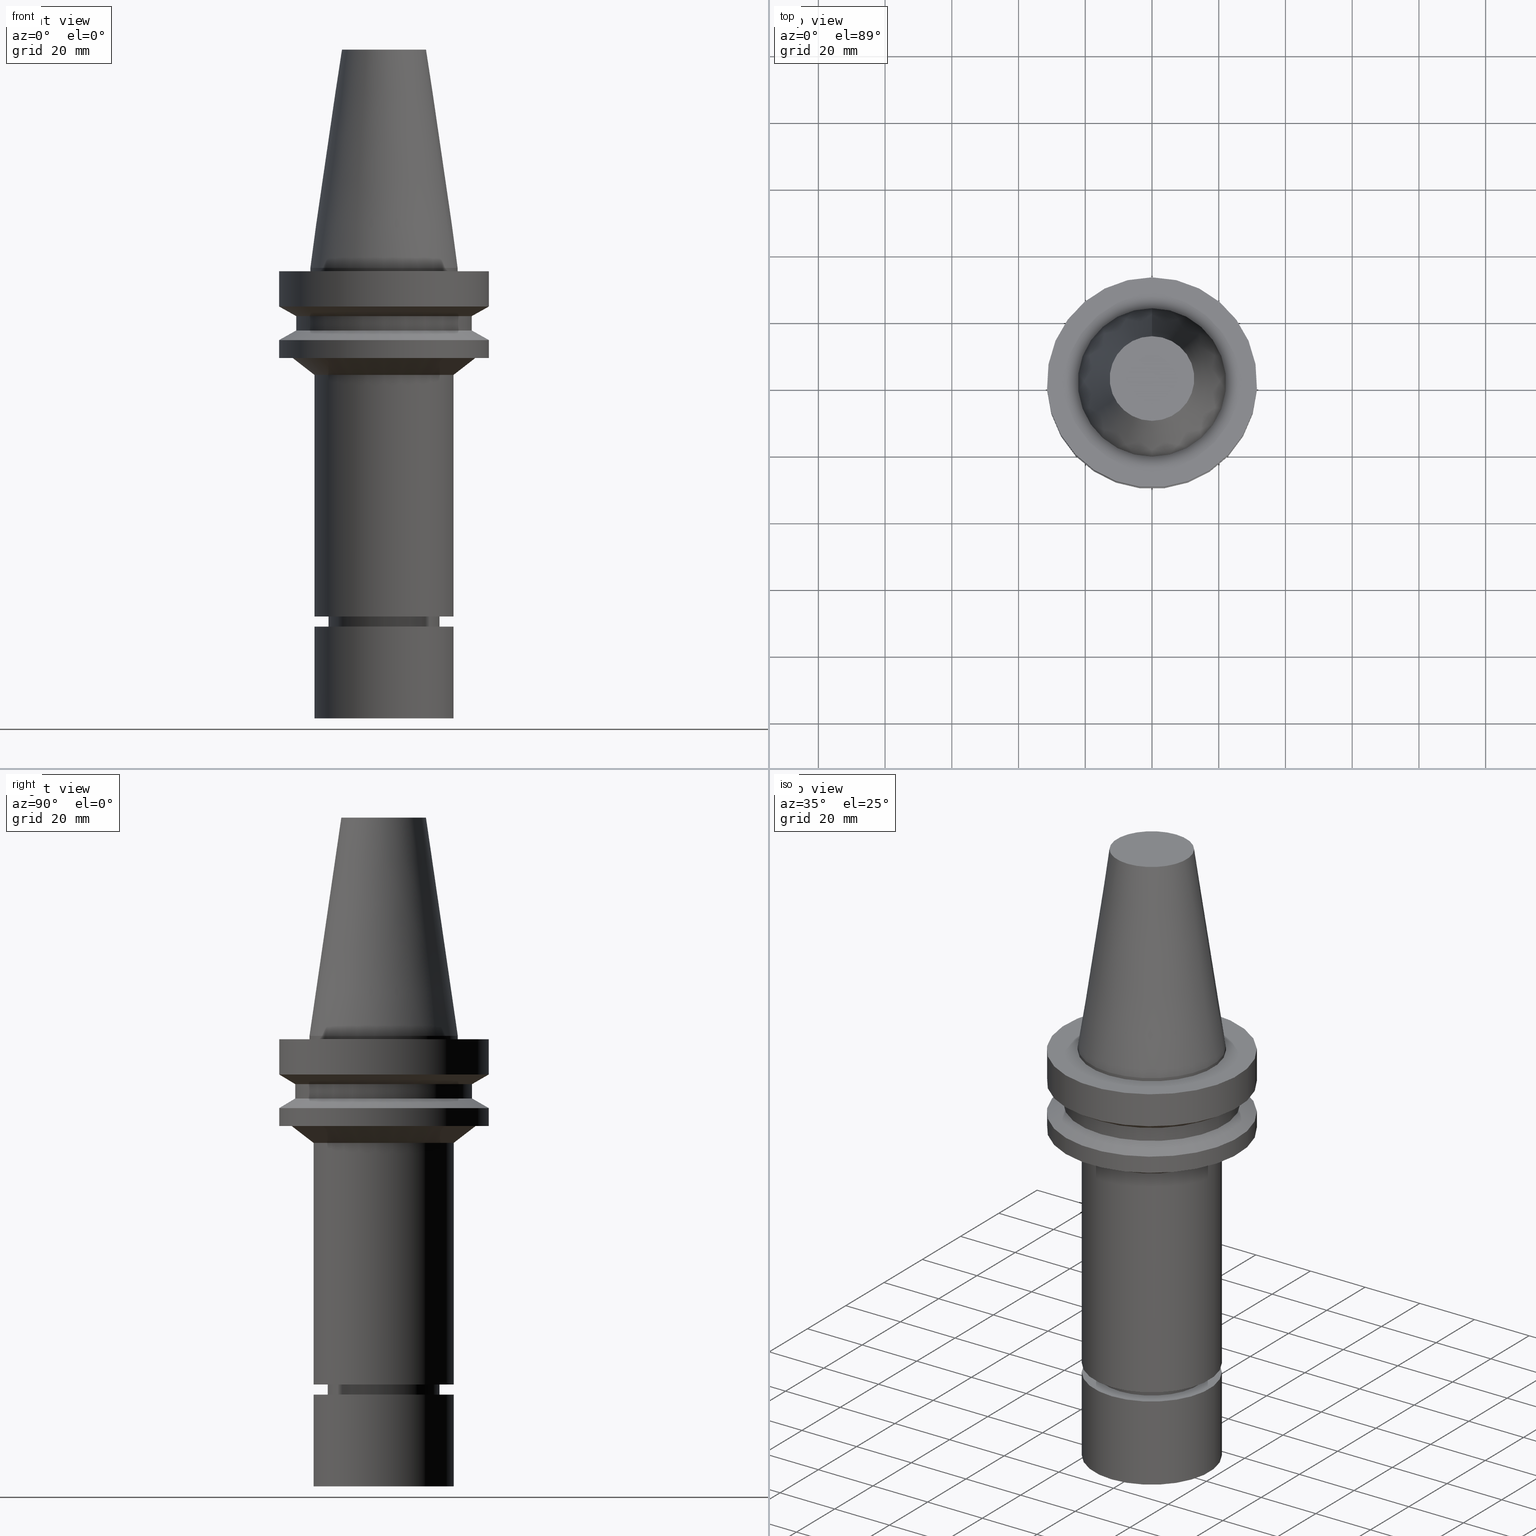
[diagram: canonical four-view strip — front | top / right | iso, engineering-drawing reading convention]
A machine part, canonical four-view strip (front | top / right | iso — engineering-drawing reading convention). The complete STEP part file that produces these views, byte-faithful:
ISO-10303-21;
HEADER;
FILE_DESCRIPTION((''),'1');
FILE_NAME('V:/90_\X2\53D65F9730C730FC30BF\X0\/00_\X2\6DE18DEF30C730FC30BF\X0\/ALL/BBT-BKUS\X2\FF76FF80FF9BFF78FF9E752852A05DE556F3\X0\201801/BBT40-MEGAER/BBT40-MEGAER25-135NL.stp','2018-02-07T02:21:42',(''),(''),'Spatial Interop R21 SP3','Kubotek KeyCreator 2011 V10.0.2 (22737)',' ');
FILE_SCHEMA(('automotive_design'));
ENDSEC;
DATA;
#1=MECHANICAL_DESIGN_GEOMETRIC_PRESENTATION_REPRESENTATION(' ',(#14,#15,#16,#17,#18,#19,#20,#21,#22,#23,#24,#25,#26,#27,#28,#29,#30,#31,#32,#33,#34,#35,#36,#37,#38,#39,#40,#41,#42,#43,#44,#45,#46,#47,#48,#49,#50,#51,#52,#53,#54,#55),#10);
#2=PRODUCT_DEFINITION_CONTEXT('',#56,'design');
#3=APPLICATION_PROTOCOL_DEFINITION('INTERNATIONAL STANDARD','automotive_design',1994,#56);
#4=PRODUCT_CATEGORY_RELATIONSHIP('NONE','NONE',#57,#58);
#5=SHAPE_DEFINITION_REPRESENTATION(#59,#60);
#6=PRODUCT_DEFINITION_CONTEXT('',#61,'design');
#7=APPLICATION_PROTOCOL_DEFINITION('INTERNATIONAL STANDARD','automotive_design',1994,#61);
#8=PRODUCT_CATEGORY_RELATIONSHIP('NONE','NONE',#62,#63);
#9=SHAPE_DEFINITION_REPRESENTATION(#64,#65);
#10= (GEOMETRIC_REPRESENTATION_CONTEXT(3)GLOBAL_UNCERTAINTY_ASSIGNED_CONTEXT((#68))GLOBAL_UNIT_ASSIGNED_CONTEXT((#70,#71,#72))REPRESENTATION_CONTEXT('NONE','WORKSPACE'));
#14=STYLED_ITEM('',(#74,#75),#76);
#15=STYLED_ITEM('',(#77,#78),#79);
#16=STYLED_ITEM('',(#80),#81);
#17=STYLED_ITEM('',(#82,#83),#84);
#18=STYLED_ITEM('',(#85),#86);
#19=STYLED_ITEM('',(#87,#88),#89);
#20=STYLED_ITEM('',(#90),#91);
#21=STYLED_ITEM('',(#92,#93),#94);
#22=STYLED_ITEM('',(#95,#96),#97);
#23=STYLED_ITEM('',(#98),#99);
#24=STYLED_ITEM('',(#100,#101),#102);
#25=STYLED_ITEM('',(#103,#104),#105);
#26=STYLED_ITEM('',(#106),#107);
#27=STYLED_ITEM('',(#108),#109);
#28=STYLED_ITEM('',(#110,#111),#112);
#29=STYLED_ITEM('',(#113),#114);
#30=STYLED_ITEM('',(#115),#116);
#31=STYLED_ITEM('',(#117),#118);
#32=STYLED_ITEM('',(#119),#120);
#33=STYLED_ITEM('',(#121,#122),#123);
#34=STYLED_ITEM('',(#124,#125),#126);
#35=STYLED_ITEM('',(#127),#128);
#36=STYLED_ITEM('',(#129,#130),#131);
#37=STYLED_ITEM('',(#132,#133),#134);
#38=STYLED_ITEM('',(#135,#136),#137);
#39=STYLED_ITEM('',(#138),#139);
#40=STYLED_ITEM('',(#140,#141),#142);
#41=STYLED_ITEM('',(#143),#144);
#42=STYLED_ITEM('',(#145,#146),#147);
#43=STYLED_ITEM('',(#148),#149);
#44=STYLED_ITEM('',(#150,#151),#152);
#45=STYLED_ITEM('',(#153,#154),#155);
#46=STYLED_ITEM('',(#156),#157);
#47=STYLED_ITEM('',(#158,#159),#160);
#48=STYLED_ITEM('',(#161,#162),#163);
#49=STYLED_ITEM('',(#164,#165),#166);
#50=STYLED_ITEM('',(#167,#168),#169);
#51=STYLED_ITEM('',(#170,#171),#172);
#52=STYLED_ITEM('',(#173),#174);
#53=STYLED_ITEM('',(#175),#176);
#54=STYLED_ITEM('',(#177),#178);
#55=STYLED_ITEM('',(#179),#180);
#56=APPLICATION_CONTEXT(' ');
#57=PRODUCT_CATEGORY('part','NONE');
#58=PRODUCT_RELATED_PRODUCT_CATEGORY('detail',' ',(#181));
#59=PRODUCT_DEFINITION_SHAPE('NONE','NONE',#182);
#60=ADVANCED_BREP_SHAPE_REPRESENTATION('Unnamed[1]',(#160,#183),#10);
#61=APPLICATION_CONTEXT(' ');
#62=PRODUCT_CATEGORY('part','NONE');
#63=PRODUCT_RELATED_PRODUCT_CATEGORY('detail',' ',(#184));
#64=PRODUCT_DEFINITION_SHAPE('NONE','NONE',#185);
#65=ADVANCED_BREP_SHAPE_REPRESENTATION('Unnamed[1]',(#89,#186),#10);
#68=UNCERTAINTY_MEASURE_WITH_UNIT(LENGTH_MEASURE(1.0E-006),#70,'','');
#70= (CONVERSION_BASED_UNIT('MILLIMETRE',#189)LENGTH_UNIT()NAMED_UNIT(#192));
#71= (NAMED_UNIT(#194)PLANE_ANGLE_UNIT()SI_UNIT($,.RADIAN.));
#72= (NAMED_UNIT(#194)SOLID_ANGLE_UNIT()SI_UNIT($,.STERADIAN.));
#74=PRESENTATION_STYLE_ASSIGNMENT((#200));
#75=PRESENTATION_STYLE_ASSIGNMENT((#201));
#76=ADVANCED_FACE('Unnamed[1]',(#202,#203),#204,.T.);
#77=PRESENTATION_STYLE_ASSIGNMENT((#205));
#78=PRESENTATION_STYLE_ASSIGNMENT((#206));
#79=ADVANCED_FACE('Unnamed[1]',(#207,#208),#209,.T.);
#80=PRESENTATION_STYLE_ASSIGNMENT((#210));
#81=EDGE_CURVE('Unnamed[1]',#211,#211,#212,.T.);
#82=PRESENTATION_STYLE_ASSIGNMENT((#213));
#83=PRESENTATION_STYLE_ASSIGNMENT((#214));
#84=ADVANCED_FACE('Unnamed[1]',(#215,#216),#217,.T.);
#85=PRESENTATION_STYLE_ASSIGNMENT((#218));
#86=EDGE_CURVE('Unnamed[1]',#219,#219,#220,.T.);
#87=PRESENTATION_STYLE_ASSIGNMENT((#221));
#88=PRESENTATION_STYLE_ASSIGNMENT((#222));
#89=MANIFOLD_SOLID_BREP('Unnamed[1]',#223);
#90=PRESENTATION_STYLE_ASSIGNMENT((#224));
#91=EDGE_CURVE('Unnamed[1]',#225,#225,#226,.T.);
#92=PRESENTATION_STYLE_ASSIGNMENT((#227));
#93=PRESENTATION_STYLE_ASSIGNMENT((#228));
#94=ADVANCED_FACE('Unnamed[1]',(#229,#230),#231,.T.);
#95=PRESENTATION_STYLE_ASSIGNMENT((#232));
#96=PRESENTATION_STYLE_ASSIGNMENT((#233));
#97=ADVANCED_FACE('Unnamed[1]',(#234,#235),#236,.T.);
#98=PRESENTATION_STYLE_ASSIGNMENT((#237));
#99=EDGE_CURVE('Unnamed[1]',#238,#238,#239,.T.);
#100=PRESENTATION_STYLE_ASSIGNMENT((#240));
#101=PRESENTATION_STYLE_ASSIGNMENT((#241));
#102=ADVANCED_FACE('Unnamed[1]',(#242,#243),#244,.T.);
#103=PRESENTATION_STYLE_ASSIGNMENT((#245));
#104=PRESENTATION_STYLE_ASSIGNMENT((#246));
#105=ADVANCED_FACE('Unnamed[1]',(#247,#248),#249,.T.);
#106=PRESENTATION_STYLE_ASSIGNMENT((#250));
#107=EDGE_CURVE('Unnamed[1]',#251,#251,#252,.T.);
#108=PRESENTATION_STYLE_ASSIGNMENT((#253));
#109=EDGE_CURVE('Unnamed[1]',#254,#254,#255,.T.);
#110=PRESENTATION_STYLE_ASSIGNMENT((#256));
#111=PRESENTATION_STYLE_ASSIGNMENT((#257));
#112=ADVANCED_FACE('Unnamed[1]',(#258,#259),#260,.T.);
#113=PRESENTATION_STYLE_ASSIGNMENT((#261));
#114=EDGE_CURVE('Unnamed[1]',#262,#262,#263,.T.);
#115=PRESENTATION_STYLE_ASSIGNMENT((#264));
#116=EDGE_CURVE('Unnamed[1]',#265,#265,#266,.T.);
#117=PRESENTATION_STYLE_ASSIGNMENT((#267));
#118=EDGE_CURVE('Unnamed[1]',#268,#268,#269,.T.);
#119=PRESENTATION_STYLE_ASSIGNMENT((#270));
#120=EDGE_CURVE('Unnamed[1]',#271,#271,#272,.T.);
#121=PRESENTATION_STYLE_ASSIGNMENT((#273));
#122=PRESENTATION_STYLE_ASSIGNMENT((#274));
#123=ADVANCED_FACE('Unnamed[1]',(#275,#276),#277,.T.);
#124=PRESENTATION_STYLE_ASSIGNMENT((#278));
#125=PRESENTATION_STYLE_ASSIGNMENT((#279));
#126=ADVANCED_FACE('Unnamed[1]',(#280,#281),#282,.T.);
#127=PRESENTATION_STYLE_ASSIGNMENT((#283));
#128=EDGE_CURVE('Unnamed[1]',#284,#284,#285,.T.);
#129=PRESENTATION_STYLE_ASSIGNMENT((#286));
#130=PRESENTATION_STYLE_ASSIGNMENT((#287));
#131=ADVANCED_FACE('Unnamed[1]',(#288,#289),#290,.T.);
#132=PRESENTATION_STYLE_ASSIGNMENT((#291));
#133=PRESENTATION_STYLE_ASSIGNMENT((#292));
#134=ADVANCED_FACE('Unnamed[1]',(#293),#294,.T.);
#135=PRESENTATION_STYLE_ASSIGNMENT((#295));
#136=PRESENTATION_STYLE_ASSIGNMENT((#296));
#137=ADVANCED_FACE('Unnamed[1]',(#297,#298),#299,.T.);
#138=PRESENTATION_STYLE_ASSIGNMENT((#300));
#139=EDGE_CURVE('Unnamed[1]',#301,#301,#302,.T.);
#140=PRESENTATION_STYLE_ASSIGNMENT((#303));
#141=PRESENTATION_STYLE_ASSIGNMENT((#304));
#142=ADVANCED_FACE('Unnamed[1]',(#305),#306,.T.);
#143=PRESENTATION_STYLE_ASSIGNMENT((#307));
#144=EDGE_CURVE('Unnamed[1]',#308,#308,#309,.T.);
#145=PRESENTATION_STYLE_ASSIGNMENT((#310));
#146=PRESENTATION_STYLE_ASSIGNMENT((#311));
#147=ADVANCED_FACE('Unnamed[1]',(#312),#313,.T.);
#148=PRESENTATION_STYLE_ASSIGNMENT((#314));
#149=EDGE_CURVE('Unnamed[1]',#315,#315,#316,.T.);
#150=PRESENTATION_STYLE_ASSIGNMENT((#317));
#151=PRESENTATION_STYLE_ASSIGNMENT((#318));
#152=ADVANCED_FACE('Unnamed[1]',(#319,#320),#321,.T.);
#153=PRESENTATION_STYLE_ASSIGNMENT((#322));
#154=PRESENTATION_STYLE_ASSIGNMENT((#323));
#155=ADVANCED_FACE('Unnamed[1]',(#324,#325),#326,.T.);
#156=PRESENTATION_STYLE_ASSIGNMENT((#327));
#157=EDGE_CURVE('Unnamed[1]',#328,#328,#329,.T.);
#158=PRESENTATION_STYLE_ASSIGNMENT((#330));
#159=PRESENTATION_STYLE_ASSIGNMENT((#331));
#160=MANIFOLD_SOLID_BREP('Unnamed[1]',#332);
#161=PRESENTATION_STYLE_ASSIGNMENT((#333));
#162=PRESENTATION_STYLE_ASSIGNMENT((#334));
#163=ADVANCED_FACE('Unnamed[1]',(#335,#336),#337,.T.);
#164=PRESENTATION_STYLE_ASSIGNMENT((#338));
#165=PRESENTATION_STYLE_ASSIGNMENT((#339));
#166=ADVANCED_FACE('Unnamed[1]',(#340,#341),#342,.T.);
#167=PRESENTATION_STYLE_ASSIGNMENT((#343));
#168=PRESENTATION_STYLE_ASSIGNMENT((#344));
#169=ADVANCED_FACE('Unnamed[1]',(#345,#346),#347,.T.);
#170=PRESENTATION_STYLE_ASSIGNMENT((#348));
#171=PRESENTATION_STYLE_ASSIGNMENT((#349));
#172=ADVANCED_FACE('Unnamed[1]',(#350),#351,.T.);
#173=PRESENTATION_STYLE_ASSIGNMENT((#352));
#174=EDGE_CURVE('Unnamed[1]',#353,#353,#354,.T.);
#175=PRESENTATION_STYLE_ASSIGNMENT((#355));
#176=EDGE_CURVE('Unnamed[1]',#356,#356,#357,.T.);
#177=PRESENTATION_STYLE_ASSIGNMENT((#358));
#178=EDGE_CURVE('Unnamed[1]',#359,#359,#360,.T.);
#179=PRESENTATION_STYLE_ASSIGNMENT((#361));
#180=EDGE_CURVE('Unnamed[1]',#362,#362,#363,.T.);
#181=PRODUCT('Unnamed[1]','Unnamed[1]','PART-Unnamed[1]-DESC',(#364));
#182=PRODUCT_DEFINITION('NONE','NONE',#365,#2);
#183=AXIS2_PLACEMENT_3D('',#366,#367,#368);
#184=PRODUCT('Unnamed[1]','Unnamed[1]','PART-Unnamed[1]-DESC',(#369));
#185=PRODUCT_DEFINITION('NONE','NONE',#370,#6);
#186=AXIS2_PLACEMENT_3D('',#371,#372,#373);
#189=LENGTH_MEASURE_WITH_UNIT(LENGTH_MEASURE(1.0),#374);
#192=DIMENSIONAL_EXPONENTS(1.0,0.0,0.0,0.0,0.0,0.0,0.0);
#194=DIMENSIONAL_EXPONENTS(0.0,0.0,0.0,0.0,0.0,0.0,0.0);
#200=SURFACE_STYLE_USAGE(.BOTH.,#375);
#201=CURVE_STYLE('',#376,POSITIVE_LENGTH_MEASURE(1000.0),#377);
#202=FACE_BOUND('',#378,.T.);
#203=FACE_OUTER_BOUND('',#379,.T.);
#204=PLANE('',#380);
#205=SURFACE_STYLE_USAGE(.BOTH.,#381);
#206=CURVE_STYLE('',#382,POSITIVE_LENGTH_MEASURE(1000.0),#383);
#207=FACE_BOUND('',#384,.T.);
#208=FACE_BOUND('',#385,.T.);
#209=CONICAL_SURFACE('',#386,28.9999999999999,1.04719755119657);
#210=CURVE_STYLE('',#387,POSITIVE_LENGTH_MEASURE(1000.0),#388);
#211=VERTEX_POINT('',#389);
#212=CIRCLE('',#390,26.4999999999994);
#213=SURFACE_STYLE_USAGE(.BOTH.,#391);
#214=CURVE_STYLE('',#392,POSITIVE_LENGTH_MEASURE(1000.0),#393);
#215=FACE_BOUND('',#394,.T.);
#216=FACE_BOUND('',#395,.T.);
#217=CONICAL_SURFACE('',#396,17.45625,0.144812498238936);
#218=CURVE_STYLE('',#397,POSITIVE_LENGTH_MEASURE(1000.0),#398);
#219=VERTEX_POINT('',#399);
#220=CIRCLE('',#400,16.7499999999907);
#221=SURFACE_STYLE_USAGE(.BOTH.,#401);
#222=CURVE_STYLE('',#402,POSITIVE_LENGTH_MEASURE(1000.0),#403);
#223=CLOSED_SHELL('',(#142,#147,#137));
#224=CURVE_STYLE('',#404,POSITIVE_LENGTH_MEASURE(1000.0),#405);
#225=VERTEX_POINT('',#406);
#226=CIRCLE('',#407,12.6875000000001);
#227=SURFACE_STYLE_USAGE(.BOTH.,#408);
#228=CURVE_STYLE('',#409,POSITIVE_LENGTH_MEASURE(1000.0),#410);
#229=FACE_BOUND('',#411,.T.);
#230=FACE_BOUND('',#412,.T.);
#231=CYLINDRICAL_SURFACE('',#413,31.5);
#232=SURFACE_STYLE_USAGE(.BOTH.,#414);
#233=CURVE_STYLE('',#415,POSITIVE_LENGTH_MEASURE(1000.0),#416);
#234=FACE_BOUND('',#417,.T.);
#235=FACE_BOUND('',#418,.T.);
#236=CYLINDRICAL_SURFACE('',#419,16.0);
#237=CURVE_STYLE('',#420,POSITIVE_LENGTH_MEASURE(1000.0),#421);
#238=VERTEX_POINT('',#422);
#239=CIRCLE('',#423,31.5000000000003);
#240=SURFACE_STYLE_USAGE(.BOTH.,#424);
#241=CURVE_STYLE('',#425,POSITIVE_LENGTH_MEASURE(1000.0),#426);
#242=FACE_BOUND('',#427,.T.);
#243=FACE_BOUND('',#428,.T.);
#244=CYLINDRICAL_SURFACE('',#429,26.4999999999997);
#245=SURFACE_STYLE_USAGE(.BOTH.,#430);
#246=CURVE_STYLE('',#431,POSITIVE_LENGTH_MEASURE(1000.0),#432);
#247=FACE_BOUND('',#433,.T.);
#248=FACE_BOUND('',#434,.T.);
#249=CONICAL_SURFACE('',#435,15.4500000000003,0.52359877559807);
#250=CURVE_STYLE('',#436,POSITIVE_LENGTH_MEASURE(1000.0),#437);
#251=VERTEX_POINT('',#438);
#252=CIRCLE('',#439,21.0000000000001);
#253=CURVE_STYLE('',#440,POSITIVE_LENGTH_MEASURE(1000.0),#441);
#254=VERTEX_POINT('',#442);
#255=CIRCLE('',#443,16.0);
#256=SURFACE_STYLE_USAGE(.BOTH.,#444);
#257=CURVE_STYLE('',#445,POSITIVE_LENGTH_MEASURE(1000.0),#446);
#258=FACE_BOUND('',#447,.T.);
#259=FACE_BOUND('',#448,.T.);
#260=CYLINDRICAL_SURFACE('',#449,22.225);
#261=CURVE_STYLE('',#450,POSITIVE_LENGTH_MEASURE(1000.0),#451);
#262=VERTEX_POINT('',#452);
#263=CIRCLE('',#453,26.5);
#264=CURVE_STYLE('',#454,POSITIVE_LENGTH_MEASURE(1000.0),#455);
#265=VERTEX_POINT('',#456);
#266=CIRCLE('',#457,21.0000000000004);
#267=CURVE_STYLE('',#458,POSITIVE_LENGTH_MEASURE(1000.0),#459);
#268=VERTEX_POINT('',#460);
#269=CIRCLE('',#461,21.0);
#270=CURVE_STYLE('',#462,POSITIVE_LENGTH_MEASURE(1000.0),#463);
#271=VERTEX_POINT('',#464);
#272=CIRCLE('',#465,21.0);
#273=SURFACE_STYLE_USAGE(.BOTH.,#466);
#274=CURVE_STYLE('',#467,POSITIVE_LENGTH_MEASURE(1000.0),#468);
#275=FACE_BOUND('',#469,.T.);
#276=FACE_OUTER_BOUND('',#470,.T.);
#277=PLANE('',#471);
#278=SURFACE_STYLE_USAGE(.BOTH.,#472);
#279=CURVE_STYLE('',#473,POSITIVE_LENGTH_MEASURE(1000.0),#474);
#280=FACE_BOUND('',#475,.T.);
#281=FACE_BOUND('',#476,.T.);
#282=CONICAL_SURFACE('',#477,29.0000000000003,1.04719755119651);
#283=CURVE_STYLE('',#478,POSITIVE_LENGTH_MEASURE(1000.0),#479);
#284=VERTEX_POINT('',#480);
#285=CIRCLE('',#481,22.225);
#286=SURFACE_STYLE_USAGE(.BOTH.,#482);
#287=CURVE_STYLE('',#483,POSITIVE_LENGTH_MEASURE(1000.0),#484);
#288=FACE_BOUND('',#485,.T.);
#289=FACE_BOUND('',#486,.T.);
#290=CYLINDRICAL_SURFACE('',#487,16.7499999999962);
#291=SURFACE_STYLE_USAGE(.BOTH.,#488);
#292=CURVE_STYLE('',#489,POSITIVE_LENGTH_MEASURE(1000.0),#490);
#293=FACE_OUTER_BOUND('',#491,.T.);
#294=PLANE('',#492);
#295=SURFACE_STYLE_USAGE(.BOTH.,#493);
#296=CURVE_STYLE('',#494,POSITIVE_LENGTH_MEASURE(1000.0),#495);
#297=FACE_BOUND('',#496,.T.);
#298=FACE_BOUND('',#497,.T.);
#299=CYLINDRICAL_SURFACE('',#498,21.0);
#300=CURVE_STYLE('',#499,POSITIVE_LENGTH_MEASURE(1000.0),#500);
#301=VERTEX_POINT('',#501);
#302=CIRCLE('',#502,31.5000000000006);
#303=SURFACE_STYLE_USAGE(.BOTH.,#503);
#304=CURVE_STYLE('',#504,POSITIVE_LENGTH_MEASURE(1000.0),#505);
#305=FACE_OUTER_BOUND('',#506,.T.);
#306=PLANE('',#507);
#307=CURVE_STYLE('',#508,POSITIVE_LENGTH_MEASURE(1000.0),#509);
#308=VERTEX_POINT('',#510);
#309=CIRCLE('',#511,31.5000000000003);
#310=SURFACE_STYLE_USAGE(.BOTH.,#512);
#311=CURVE_STYLE('',#513,POSITIVE_LENGTH_MEASURE(1000.0),#514);
#312=FACE_OUTER_BOUND('',#515,.T.);
#313=PLANE('',#516);
#314=CURVE_STYLE('',#517,POSITIVE_LENGTH_MEASURE(1000.0),#518);
#315=VERTEX_POINT('',#519);
#316=CIRCLE('',#520,16.0);
#317=SURFACE_STYLE_USAGE(.BOTH.,#521);
#318=CURVE_STYLE('',#522,POSITIVE_LENGTH_MEASURE(1000.0),#523);
#319=FACE_BOUND('',#524,.T.);
#320=FACE_BOUND('',#525,.T.);
#321=CYLINDRICAL_SURFACE('',#526,31.5000000000005);
#322=SURFACE_STYLE_USAGE(.BOTH.,#527);
#323=CURVE_STYLE('',#528,POSITIVE_LENGTH_MEASURE(1000.0),#529);
#324=FACE_OUTER_BOUND('',#530,.T.);
#325=FACE_BOUND('',#531,.T.);
#326=PLANE('',#532);
#327=CURVE_STYLE('',#533,POSITIVE_LENGTH_MEASURE(1000.0),#534);
#328=VERTEX_POINT('',#535);
#329=CIRCLE('',#536,14.9000000000006);
#330=SURFACE_STYLE_USAGE(.BOTH.,#537);
#331=CURVE_STYLE('',#538,POSITIVE_LENGTH_MEASURE(1000.0),#539);
#332=CLOSED_SHELL('',(#134,#84,#112,#155,#94,#79,#102,#126,#152,#76,#163,#169,#123,#131,#166,#97,#105,#172));
#333=SURFACE_STYLE_USAGE(.BOTH.,#540);
#334=CURVE_STYLE('',#541,POSITIVE_LENGTH_MEASURE(1000.0),#542);
#335=FACE_BOUND('',#543,.T.);
#336=FACE_BOUND('',#544,.T.);
#337=CONICAL_SURFACE('',#545,24.285926013083,0.914225393497888);
#338=SURFACE_STYLE_USAGE(.BOTH.,#546);
#339=CURVE_STYLE('',#547,POSITIVE_LENGTH_MEASURE(1000.0),#548);
#340=FACE_BOUND('',#549,.T.);
#341=FACE_BOUND('',#550,.T.);
#342=CONICAL_SURFACE('',#551,16.3750000000008,1.04719755120059);
#343=SURFACE_STYLE_USAGE(.BOTH.,#552);
#344=CURVE_STYLE('',#553,POSITIVE_LENGTH_MEASURE(1000.0),#554);
#345=FACE_BOUND('',#555,.T.);
#346=FACE_BOUND('',#556,.T.);
#347=CYLINDRICAL_SURFACE('',#557,21.0000000000003);
#348=SURFACE_STYLE_USAGE(.BOTH.,#558);
#349=CURVE_STYLE('',#559,POSITIVE_LENGTH_MEASURE(1000.0),#560);
#350=FACE_OUTER_BOUND('',#561,.T.);
#351=PLANE('',#562);
#352=CURVE_STYLE('',#563,POSITIVE_LENGTH_MEASURE(1000.0),#564);
#353=VERTEX_POINT('',#565);
#354=CIRCLE('',#566,31.4999999999996);
#355=CURVE_STYLE('',#567,POSITIVE_LENGTH_MEASURE(1000.0),#568);
#356=VERTEX_POINT('',#569);
#357=CIRCLE('',#570,27.5718520261655);
#358=CURVE_STYLE('',#571,POSITIVE_LENGTH_MEASURE(1000.0),#572);
#359=VERTEX_POINT('',#573);
#360=CIRCLE('',#574,16.7500000000016);
#361=CURVE_STYLE('',#575,POSITIVE_LENGTH_MEASURE(1000.0),#576);
#362=VERTEX_POINT('',#577);
#363=CIRCLE('',#578,22.225);
#364=PRODUCT_CONTEXT('',#56,'mechanical');
#365=PRODUCT_DEFINITION_FORMATION_WITH_SPECIFIED_SOURCE(' ','NONE',#181,.NOT_KNOWN.);
#366=CARTESIAN_POINT('',(0.0,0.0,0.0));
#367=DIRECTION('',(0.0,0.0,1.0));
#368=DIRECTION('',(1.0,0.0,0.0));
#369=PRODUCT_CONTEXT('',#61,'mechanical');
#370=PRODUCT_DEFINITION_FORMATION_WITH_SPECIFIED_SOURCE(' ','NONE',#184,.NOT_KNOWN.);
#371=CARTESIAN_POINT('',(0.0,0.0,0.0));
#372=DIRECTION('',(0.0,0.0,1.0));
#373=DIRECTION('',(1.0,0.0,0.0));
#374= (NAMED_UNIT(#192)LENGTH_UNIT()SI_UNIT(.MILLI.,.METRE.));
#375=SURFACE_SIDE_STYLE('',(#580));
#376=DRAUGHTING_PRE_DEFINED_CURVE_FONT('continuous');
#377=COLOUR_RGB('',0.0,1.0,0.0);
#378=EDGE_LOOP('',(#581));
#379=EDGE_LOOP('',(#582));
#380=AXIS2_PLACEMENT_3D('',#583,#584,#585);
#381=SURFACE_SIDE_STYLE('',(#586));
#382=DRAUGHTING_PRE_DEFINED_CURVE_FONT('continuous');
#383=COLOUR_RGB('',0.0,1.0,0.0);
#384=EDGE_LOOP('',(#587));
#385=EDGE_LOOP('',(#588));
#386=AXIS2_PLACEMENT_3D('',#589,#590,#591);
#387=DRAUGHTING_PRE_DEFINED_CURVE_FONT('continuous');
#388=COLOUR_RGB('',0.0,1.0,0.0);
#389=CARTESIAN_POINT('',(8.8494551369045E-016,26.4999999999995,-14.4522569986152));
#390=AXIS2_PLACEMENT_3D('',#592,#593,#594);
#391=SURFACE_SIDE_STYLE('',(#595));
#392=DRAUGHTING_PRE_DEFINED_CURVE_FONT('continuous');
#393=COLOUR_RGB('',0.0,1.0,0.0);
#394=EDGE_LOOP('',(#596));
#395=EDGE_LOOP('',(#597));
#396=AXIS2_PLACEMENT_3D('',#598,#599,#600);
#397=DRAUGHTING_PRE_DEFINED_CURVE_FONT('continuous');
#398=COLOUR_RGB('',0.0,1.0,0.0);
#399=CARTESIAN_POINT('',(6.39877952554487E-015,16.7499999999907,-104.499999999999));
#400=AXIS2_PLACEMENT_3D('',#601,#602,#603);
#401=SURFACE_SIDE_STYLE('',(#604));
#402=DRAUGHTING_PRE_DEFINED_CURVE_FONT('continuous');
#403=COLOUR_RGB('',0.0,1.0,0.0);
#404=DRAUGHTING_PRE_DEFINED_CURVE_FONT('continuous');
#405=COLOUR_RGB('',0.0,1.0,0.0);
#406=CARTESIAN_POINT('',(-4.00459503321185E-015,12.6875000000002,65.4000000000001));
#407=AXIS2_PLACEMENT_3D('',#605,#606,#607);
#408=SURFACE_SIDE_STYLE('',(#608));
#409=DRAUGHTING_PRE_DEFINED_CURVE_FONT('continuous');
#410=COLOUR_RGB('',0.0,1.0,0.0);
#411=EDGE_LOOP('',(#609));
#412=EDGE_LOOP('',(#610));
#413=AXIS2_PLACEMENT_3D('',#611,#612,#613);
#414=SURFACE_SIDE_STYLE('',(#614));
#415=DRAUGHTING_PRE_DEFINED_CURVE_FONT('continuous');
#416=COLOUR_RGB('',0.0,1.0,0.0);
#417=EDGE_LOOP('',(#615));
#418=EDGE_LOOP('',(#616));
#419=AXIS2_PLACEMENT_3D('',#617,#618,#619);
#420=DRAUGHTING_PRE_DEFINED_CURVE_FONT('continuous');
#421=COLOUR_RGB('',0.0,1.0,0.0);
#422=CARTESIAN_POINT('',(7.08182973902924E-016,31.5000000000004,-11.5655056526664));
#423=AXIS2_PLACEMENT_3D('',#620,#621,#622);
#424=SURFACE_SIDE_STYLE('',(#623));
#425=DRAUGHTING_PRE_DEFINED_CURVE_FONT('continuous');
#426=COLOUR_RGB('',0.0,1.0,0.0);
#427=EDGE_LOOP('',(#624));
#428=EDGE_LOOP('',(#625));
#429=AXIS2_PLACEMENT_3D('',#626,#627,#628);
#430=SURFACE_SIDE_STYLE('',(#629));
#431=DRAUGHTING_PRE_DEFINED_CURVE_FONT('continuous');
#432=COLOUR_RGB('',0.0,1.0,0.0);
#433=EDGE_LOOP('',(#630));
#434=EDGE_LOOP('',(#631));
#435=AXIS2_PLACEMENT_3D('',#632,#633,#634);
#436=DRAUGHTING_PRE_DEFINED_CURVE_FONT('continuous');
#437=COLOUR_RGB('',0.0,1.0,0.0);
#438=CARTESIAN_POINT('',(6.39877952554491E-015,21.0000000000002,-104.5));
#439=AXIS2_PLACEMENT_3D('',#635,#636,#637);
#440=DRAUGHTING_PRE_DEFINED_CURVE_FONT('continuous');
#441=COLOUR_RGB('',0.0,1.0,0.0);
#442=CARTESIAN_POINT('',(7.52513275041975E-015,16.0,-122.894744111674));
#443=AXIS2_PLACEMENT_3D('',#638,#639,#640);
#444=SURFACE_SIDE_STYLE('',(#641));
#445=DRAUGHTING_PRE_DEFINED_CURVE_FONT('continuous');
#446=COLOUR_RGB('',0.0,1.0,0.0);
#447=EDGE_LOOP('',(#642));
#448=EDGE_LOOP('',(#643));
#449=AXIS2_PLACEMENT_3D('',#644,#645,#646);
#450=DRAUGHTING_PRE_DEFINED_CURVE_FONT('continuous');
#451=COLOUR_RGB('',0.0,1.0,0.0);
#452=CARTESIAN_POINT('',(1.1479681728942E-015,26.5,-18.7477430013855));
#453=AXIS2_PLACEMENT_3D('',#647,#648,#649);
#454=DRAUGHTING_PRE_DEFINED_CURVE_FONT('continuous');
#455=COLOUR_RGB('',0.0,1.0,0.0);
#456=CARTESIAN_POINT('',(1.96338026992049E-015,21.0000000000005,-32.0644331294128));
#457=AXIS2_PLACEMENT_3D('',#650,#651,#652);
#458=DRAUGHTING_PRE_DEFINED_CURVE_FONT('continuous');
#459=COLOUR_RGB('',0.0,1.0,0.0);
#460=CARTESIAN_POINT('',(8.26636589424463E-015,21.0,-135.0));
#461=AXIS2_PLACEMENT_3D('',#653,#654,#655);
#462=DRAUGHTING_PRE_DEFINED_CURVE_FONT('continuous');
#463=COLOUR_RGB('',0.0,1.0,0.0);
#464=CARTESIAN_POINT('',(6.58247654541702E-015,21.0,-107.5));
#465=AXIS2_PLACEMENT_3D('',#656,#657,#658);
#466=SURFACE_SIDE_STYLE('',(#659));
#467=DRAUGHTING_PRE_DEFINED_CURVE_FONT('continuous');
#468=COLOUR_RGB('',0.0,1.0,0.0);
#469=EDGE_LOOP('',(#660));
#470=EDGE_LOOP('',(#661));
#471=AXIS2_PLACEMENT_3D('',#662,#663,#664);
#472=SURFACE_SIDE_STYLE('',(#665));
#473=DRAUGHTING_PRE_DEFINED_CURVE_FONT('continuous');
#474=COLOUR_RGB('',0.0,1.0,0.0);
#475=EDGE_LOOP('',(#666));
#476=EDGE_LOOP('',(#667));
#477=AXIS2_PLACEMENT_3D('',#668,#669,#670);
#478=DRAUGHTING_PRE_DEFINED_CURVE_FONT('continuous');
#479=COLOUR_RGB('',0.0,1.0,0.0);
#480=CARTESIAN_POINT('',(6.12323399573622E-017,22.2250000000001,-0.999999999999912));
#481=AXIS2_PLACEMENT_3D('',#671,#672,#673);
#482=SURFACE_SIDE_STYLE('',(#674));
#483=DRAUGHTING_PRE_DEFINED_CURVE_FONT('continuous');
#484=COLOUR_RGB('',0.0,1.0,0.0);
#485=EDGE_LOOP('',(#675));
#486=EDGE_LOOP('',(#676));
#487=AXIS2_PLACEMENT_3D('',#677,#678,#679);
#488=SURFACE_SIDE_STYLE('',(#680));
#489=DRAUGHTING_PRE_DEFINED_CURVE_FONT('continuous');
#490=COLOUR_RGB('',0.0,1.0,0.0);
#491=EDGE_LOOP('',(#681));
#492=AXIS2_PLACEMENT_3D('',#682,#683,#684);
#493=SURFACE_SIDE_STYLE('',(#685));
#494=DRAUGHTING_PRE_DEFINED_CURVE_FONT('continuous');
#495=COLOUR_RGB('',0.0,1.0,0.0);
#496=EDGE_LOOP('',(#686));
#497=EDGE_LOOP('',(#687));
#498=AXIS2_PLACEMENT_3D('',#688,#689,#690);
#499=DRAUGHTING_PRE_DEFINED_CURVE_FONT('continuous');
#500=COLOUR_RGB('',0.0,1.0,0.0);
#501=CARTESIAN_POINT('',(1.32473071268174E-015,31.5000000000007,-21.6344943473346));
#502=AXIS2_PLACEMENT_3D('',#691,#692,#693);
#503=SURFACE_SIDE_STYLE('',(#694));
#504=DRAUGHTING_PRE_DEFINED_CURVE_FONT('continuous');
#505=COLOUR_RGB('',0.0,1.0,0.0);
#506=EDGE_LOOP('',(#695));
#507=AXIS2_PLACEMENT_3D('',#696,#697,#698);
#508=DRAUGHTING_PRE_DEFINED_CURVE_FONT('continuous');
#509=COLOUR_RGB('',0.0,1.0,0.0);
#510=CARTESIAN_POINT('',(1.65327317884891E-015,31.5000000000004,-26.9999999999998));
#511=AXIS2_PLACEMENT_3D('',#699,#700,#701);
#512=SURFACE_SIDE_STYLE('',(#702));
#513=DRAUGHTING_PRE_DEFINED_CURVE_FONT('continuous');
#514=COLOUR_RGB('',0.0,1.0,0.0);
#515=EDGE_LOOP('',(#703));
#516=AXIS2_PLACEMENT_3D('',#704,#705,#706);
#517=DRAUGHTING_PRE_DEFINED_CURVE_FONT('continuous');
#518=COLOUR_RGB('',0.0,1.0,0.0);
#519=CARTESIAN_POINT('',(6.79068717130714E-015,16.0,-110.90033756729));
#520=AXIS2_PLACEMENT_3D('',#707,#708,#709);
#521=SURFACE_SIDE_STYLE('',(#710));
#522=DRAUGHTING_PRE_DEFINED_CURVE_FONT('continuous');
#523=COLOUR_RGB('',0.0,1.0,0.0);
#524=EDGE_LOOP('',(#711));
#525=EDGE_LOOP('',(#712));
#526=AXIS2_PLACEMENT_3D('',#713,#714,#715);
#527=SURFACE_SIDE_STYLE('',(#716));
#528=DRAUGHTING_PRE_DEFINED_CURVE_FONT('continuous');
#529=COLOUR_RGB('',0.0,1.0,0.0);
#530=EDGE_LOOP('',(#717));
#531=EDGE_LOOP('',(#718));
#532=AXIS2_PLACEMENT_3D('',#719,#720,#721);
#533=DRAUGHTING_PRE_DEFINED_CURVE_FONT('continuous');
#534=COLOUR_RGB('',0.0,1.0,0.0);
#535=CARTESIAN_POINT('',(7.64179602667949E-015,14.9000000000007,-124.8));
#536=AXIS2_PLACEMENT_3D('',#722,#723,#724);
#537=SURFACE_SIDE_STYLE('',(#725));
#538=DRAUGHTING_PRE_DEFINED_CURVE_FONT('continuous');
#539=COLOUR_RGB('',0.0,1.0,0.0);
#540=SURFACE_SIDE_STYLE('',(#726));
#541=DRAUGHTING_PRE_DEFINED_CURVE_FONT('continuous');
#542=COLOUR_RGB('',0.0,1.0,0.0);
#543=EDGE_LOOP('',(#727));
#544=EDGE_LOOP('',(#728));
#545=AXIS2_PLACEMENT_3D('',#729,#730,#731);
#546=SURFACE_SIDE_STYLE('',(#732));
#547=DRAUGHTING_PRE_DEFINED_CURVE_FONT('continuous');
#548=COLOUR_RGB('',0.0,1.0,0.0);
#549=EDGE_LOOP('',(#733));
#550=EDGE_LOOP('',(#734));
#551=AXIS2_PLACEMENT_3D('',#735,#736,#737);
#552=SURFACE_SIDE_STYLE('',(#738));
#553=DRAUGHTING_PRE_DEFINED_CURVE_FONT('continuous');
#554=COLOUR_RGB('',0.0,1.0,0.0);
#555=EDGE_LOOP('',(#739));
#556=EDGE_LOOP('',(#740));
#557=AXIS2_PLACEMENT_3D('',#741,#742,#743);
#558=SURFACE_SIDE_STYLE('',(#744));
#559=DRAUGHTING_PRE_DEFINED_CURVE_FONT('continuous');
#560=COLOUR_RGB('',0.0,1.0,0.0);
#561=EDGE_LOOP('',(#745));
#562=AXIS2_PLACEMENT_3D('',#746,#747,#748);
#563=DRAUGHTING_PRE_DEFINED_CURVE_FONT('continuous');
#564=COLOUR_RGB('',0.0,1.0,0.0);
#565=CARTESIAN_POINT('',(6.12323399573568E-017,31.4999999999997,-0.999999999999825));
#566=AXIS2_PLACEMENT_3D('',#749,#750,#751);
#567=DRAUGHTING_PRE_DEFINED_CURVE_FONT('continuous');
#568=COLOUR_RGB('',0.0,1.0,0.0);
#569=CARTESIAN_POINT('',(1.65327317884891E-015,27.5718520261655,-26.9999999999998));
#570=AXIS2_PLACEMENT_3D('',#752,#753,#754);
#571=DRAUGHTING_PRE_DEFINED_CURVE_FONT('continuous');
#572=COLOUR_RGB('',0.0,1.0,0.0);
#573=CARTESIAN_POINT('',(6.7641727903392E-015,16.7500000000017,-110.467324865401));
#574=AXIS2_PLACEMENT_3D('',#755,#756,#757);
#575=DRAUGHTING_PRE_DEFINED_CURVE_FONT('continuous');
#576=COLOUR_RGB('',0.0,1.0,0.0);
#577=CARTESIAN_POINT('',(1.71319921032766E-029,22.2250000000001,-2.8153873565375E-013));
#578=AXIS2_PLACEMENT_3D('',#758,#759,#760);
#580=SURFACE_STYLE_FILL_AREA(#761);
#581=ORIENTED_EDGE('',*,*,#176,.F.);
#582=ORIENTED_EDGE('',*,*,#144,.T.);
#583=CARTESIAN_POINT('',(1.65327317884891E-015,29.535926013083,-26.9999999999998));
#584=DIRECTION('',(6.12323399573677E-017,2.83573849429106E-015,-1.0));
#585=DIRECTION('',(-1.78466056243393E-031,1.0,2.83573849429106E-015));
#586=SURFACE_STYLE_FILL_AREA(#762);
#587=ORIENTED_EDGE('',*,*,#81,.F.);
#588=ORIENTED_EDGE('',*,*,#99,.T.);
#589=CARTESIAN_POINT('',(7.96564243796687E-016,6.97397974048175E-014,-13.0088813256408));
#590=DIRECTION('',(-6.12323399573676E-017,9.35480732738688E-017,1.0));
#591=DIRECTION('',(9.0101469429108E-034,1.0,-9.35480732738688E-017));
#592=CARTESIAN_POINT('',(8.8494551369045E-016,6.96047723916004E-014,-14.4522569986152));
#593=DIRECTION('',(6.12323399573677E-017,-9.35480732738494E-017,-1.0));
#594=DIRECTION('',(9.0101469429413E-034,1.0,-9.35480732738494E-017));
#595=SURFACE_STYLE_FILL_AREA(#763);
#596=ORIENTED_EDGE('',*,*,#180,.F.);
#597=ORIENTED_EDGE('',*,*,#91,.T.);
#598=CARTESIAN_POINT('',(-2.00229751660592E-015,7.40157751843334E-014,32.6999999999999));
#599=DIRECTION('',(6.12323399573677E-017,-9.3548073273804E-017,-1.0));
#600=DIRECTION('',(9.01014694280386E-034,1.0,-9.3548073273804E-017));
#601=CARTESIAN_POINT('',(6.39877952554487E-015,6.11809795311638E-014,-104.499999999999));
#602=DIRECTION('',(6.12323399573677E-017,-9.35480732738538E-017,-1.0));
#603=DIRECTION('',(9.01014694290469E-034,1.0,-9.35480732738538E-017));
#604=SURFACE_STYLE_FILL_AREA(#764);
#605=CARTESIAN_POINT('',(-4.00459503321185E-015,7.70747971803877E-014,65.4000000000001));
#606=DIRECTION('',(6.12323399573677E-017,-9.35480732738356E-017,-1.0));
#607=DIRECTION('',(9.01014694292835E-034,1.0,-9.35480732738356E-017));
#608=SURFACE_STYLE_FILL_AREA(#765);
#609=ORIENTED_EDGE('',*,*,#99,.F.);
#610=ORIENTED_EDGE('',*,*,#174,.T.);
#611=CARTESIAN_POINT('',(3.84707656930141E-016,7.03690137665199E-014,-6.28275282633309));
#612=DIRECTION('',(6.12323399573676E-017,-9.35480732737835E-017,-1.0));
#613=DIRECTION('',(9.01014694288524E-034,1.0,-9.35480732737835E-017));
#614=SURFACE_STYLE_FILL_AREA(#766);
#615=ORIENTED_EDGE('',*,*,#109,.F.);
#616=ORIENTED_EDGE('',*,*,#149,.T.);
#617=CARTESIAN_POINT('',(7.15790996086345E-015,6.00212134722965E-014,-116.897540839482));
#618=DIRECTION('',(6.12323399573676E-017,-9.35480732737884E-017,-1.0));
#619=DIRECTION('',(9.01014694290304E-034,1.0,-9.35480732737884E-017));
#620=CARTESIAN_POINT('',(7.08182973902924E-016,6.98748224180346E-014,-11.5655056526664));
#621=DIRECTION('',(6.12323399573677E-017,-9.35480732737825E-017,-1.0));
#622=DIRECTION('',(9.01014694294208E-034,1.0,-9.35480732737825E-017));
#623=SURFACE_STYLE_FILL_AREA(#767);
#624=ORIENTED_EDGE('',*,*,#114,.F.);
#625=ORIENTED_EDGE('',*,*,#81,.T.);
#626=CARTESIAN_POINT('',(1.01645684329232E-015,6.94038551719335E-014,-16.6000000000004));
#627=DIRECTION('',(6.12323399573677E-017,-9.35480732738484E-017,-1.0));
#628=DIRECTION('',(9.01014694294121E-034,1.0,-9.35480732738484E-017));
#629=SURFACE_STYLE_FILL_AREA(#768);
#630=ORIENTED_EDGE('',*,*,#157,.F.);
#631=ORIENTED_EDGE('',*,*,#109,.T.);
#632=CARTESIAN_POINT('',(7.58346438854962E-015,5.93710701524281E-014,-123.847372055837));
#633=DIRECTION('',(-6.12323399573677E-017,9.35480732738384E-017,1.0));
#634=DIRECTION('',(9.01014694297905E-034,1.0,-9.35480732738384E-017));
#635=CARTESIAN_POINT('',(6.39877952554491E-015,6.11809795311637E-014,-104.5));
#636=DIRECTION('',(6.12323399573677E-017,-9.35480732737827E-017,-1.0));
#637=DIRECTION('',(9.01014694291364E-034,1.0,-9.35480732737827E-017));
#638=CARTESIAN_POINT('',(7.52513275041975E-015,5.94601866611514E-014,-122.894744111674));
#639=DIRECTION('',(6.12323399573677E-017,-9.35480732737883E-017,-1.0));
#640=DIRECTION('',(9.01014694290304E-034,1.0,-9.35480732737883E-017));
#641=SURFACE_STYLE_FILL_AREA(#769);
#642=ORIENTED_EDGE('',*,*,#128,.F.);
#643=ORIENTED_EDGE('',*,*,#180,.T.);
#644=CARTESIAN_POINT('',(3.06161699786899E-017,7.09099791516422E-014,-0.500000000000099));
#645=DIRECTION('',(6.12323399573677E-017,-9.35480732738586E-017,-1.0));
#646=DIRECTION('',(9.01014694293456E-034,1.0,-9.35480732738586E-017));
#647=CARTESIAN_POINT('',(1.1479681728942E-015,6.92029379522665E-014,-18.7477430013855));
#648=DIRECTION('',(6.12323399573677E-017,-9.35480732738474E-017,-1.0));
#649=DIRECTION('',(9.01014694294111E-034,1.0,-9.35480732738474E-017));
#650=CARTESIAN_POINT('',(1.96338026992049E-015,6.79571872484049E-014,-32.0644331294128));
#651=DIRECTION('',(6.12323399573677E-017,-9.35480732737815E-017,-1.0));
#652=DIRECTION('',(9.01014694291352E-034,1.0,-9.35480732737815E-017));
#653=CARTESIAN_POINT('',(8.26636589424463E-015,5.83277632963118E-014,-135.0));
#654=DIRECTION('',(6.12323399573676E-017,-9.35480732738317E-017,-1.0));
#655=DIRECTION('',(9.01014694290972E-034,1.0,-9.35480732738317E-017));
#656=CARTESIAN_POINT('',(6.58247654541702E-015,6.09003353113422E-014,-107.5));
#657=DIRECTION('',(6.12323399573677E-017,-9.35480732738317E-017,-1.0));
#658=DIRECTION('',(9.01014694290988E-034,1.0,-9.35480732738317E-017));
#659=SURFACE_STYLE_FILL_AREA(#770);
#660=ORIENTED_EDGE('',*,*,#86,.F.);
#661=ORIENTED_EDGE('',*,*,#107,.T.);
#662=CARTESIAN_POINT('',(6.39877952554489E-015,18.8749999999955,-104.5));
#663=DIRECTION('',(6.12323399573677E-017,-1.63720330859696E-013,-1.0));
#664=DIRECTION('',(1.00201518044029E-029,1.0,-1.63720330859696E-013));
#665=SURFACE_STYLE_FILL_AREA(#771);
#666=ORIENTED_EDGE('',*,*,#139,.F.);
#667=ORIENTED_EDGE('',*,*,#114,.T.);
#668=CARTESIAN_POINT('',(1.23634944278797E-015,6.90679129390494E-014,-20.1911186743601));
#669=DIRECTION('',(6.12323399573677E-017,-9.35480732738673E-017,-1.0));
#670=DIRECTION('',(9.01014694291066E-034,1.0,-9.35480732738673E-017));
#671=CARTESIAN_POINT('',(6.12323399573624E-017,7.08632051150053E-014,-0.999999999999915));
#672=DIRECTION('',(6.12323399573677E-017,-9.35480732738586E-017,-1.0));
#673=DIRECTION('',(9.01014694293456E-034,1.0,-9.35480732738586E-017));
#674=SURFACE_STYLE_FILL_AREA(#772);
#675=ORIENTED_EDGE('',*,*,#178,.F.);
#676=ORIENTED_EDGE('',*,*,#86,.T.);
#677=CARTESIAN_POINT('',(6.58147615794204E-015,6.09018636592851E-014,-107.4836624327));
#678=DIRECTION('',(6.12323399573677E-017,-9.35480732738233E-017,-1.0));
#679=DIRECTION('',(9.01014694295529E-034,1.0,-9.35480732738233E-017));
#680=SURFACE_STYLE_FILL_AREA(#773);
#681=ORIENTED_EDGE('',*,*,#91,.F.);
#682=CARTESIAN_POINT('',(-4.00459503321185E-015,6.34375000000014,65.4000000000001));
#683=DIRECTION('',(-6.12323399573677E-017,9.97602686800683E-016,1.0));
#684=DIRECTION('',(-5.62583941297938E-032,-1.0,9.97602686800683E-016));
#685=SURFACE_STYLE_FILL_AREA(#774);
#686=ORIENTED_EDGE('',*,*,#118,.F.);
#687=ORIENTED_EDGE('',*,*,#120,.T.);
#688=CARTESIAN_POINT('',(7.42442121983083E-015,5.9614049303827E-014,-121.25));
#689=DIRECTION('',(6.12323399573677E-017,-9.35480732738317E-017,-1.0));
#690=DIRECTION('',(9.01014694290988E-034,1.0,-9.35480732738317E-017));
#691=CARTESIAN_POINT('',(1.32473071268174E-015,6.89328879258323E-014,-21.6344943473346));
#692=DIRECTION('',(6.12323399573677E-017,-9.35480732737815E-017,-1.0));
#693=DIRECTION('',(9.01014694294199E-034,1.0,-9.35480732737815E-017));
#694=SURFACE_STYLE_FILL_AREA(#775);
#695=ORIENTED_EDGE('',*,*,#118,.T.);
#696=CARTESIAN_POINT('',(8.26636589424463E-015,10.5,-135.0));
#697=DIRECTION('',(6.12323399573677E-017,1.22464679914735E-016,-1.0));
#698=DIRECTION('',(-1.23259516440783E-032,1.0,1.22464679914735E-016));
#699=CARTESIAN_POINT('',(1.65327317884891E-015,6.84309552098857E-014,-26.9999999999998));
#700=DIRECTION('',(6.12323399573677E-017,-9.35480732737825E-017,-1.0));
#701=DIRECTION('',(9.01014694294208E-034,1.0,-9.35480732737825E-017));
#702=SURFACE_STYLE_FILL_AREA(#776);
#703=ORIENTED_EDGE('',*,*,#120,.F.);
#704=CARTESIAN_POINT('',(6.58247654541702E-015,10.5,-107.5));
#705=DIRECTION('',(-6.12323399573677E-017,-1.22464679914735E-016,1.0));
#706=DIRECTION('',(1.23259516440783E-032,-1.0,-1.22464679914735E-016));
#707=CARTESIAN_POINT('',(6.79068717130714E-015,6.05822402834416E-014,-110.90033756729));
#708=DIRECTION('',(6.12323399573676E-017,-9.35480732737884E-017,-1.0));
#709=DIRECTION('',(9.01014694290304E-034,1.0,-9.35480732737884E-017));
#710=SURFACE_STYLE_FILL_AREA(#777);
#711=ORIENTED_EDGE('',*,*,#144,.F.);
#712=ORIENTED_EDGE('',*,*,#139,.T.);
#713=CARTESIAN_POINT('',(1.48900194576533E-015,6.8681921567859E-014,-24.3172471736672));
#714=DIRECTION('',(6.12323399573677E-017,-9.3548073273782E-017,-1.0));
#715=DIRECTION('',(9.01014694294203E-034,1.0,-9.3548073273782E-017));
#716=SURFACE_STYLE_FILL_AREA(#778);
#717=ORIENTED_EDGE('',*,*,#174,.F.);
#718=ORIENTED_EDGE('',*,*,#128,.T.);
#719=CARTESIAN_POINT('',(6.12323399573595E-017,26.8624999999999,-0.999999999999869));
#720=DIRECTION('',(-6.12323399573677E-017,-9.35138060429241E-015,1.0));
#721=DIRECTION('',(5.77434068963536E-031,-1.0,-9.35138060429241E-015));
#722=CARTESIAN_POINT('',(7.64179602667949E-015,5.92819536437049E-014,-124.8));
#723=DIRECTION('',(6.12323399573676E-017,-9.35480732737838E-017,-1.0));
#724=DIRECTION('',(9.01014694288009E-034,1.0,-9.35480732737838E-017));
#725=SURFACE_STYLE_FILL_AREA(#779);
#726=SURFACE_STYLE_FILL_AREA(#780);
#727=ORIENTED_EDGE('',*,*,#116,.F.);
#728=ORIENTED_EDGE('',*,*,#176,.T.);
#729=CARTESIAN_POINT('',(1.8083267243847E-015,6.81940712291453E-014,-29.5322165647063));
#730=DIRECTION('',(-6.12323399573677E-017,9.35480732738838E-017,1.0));
#731=DIRECTION('',(9.01014694293349E-034,1.0,-9.35480732738838E-017));
#732=SURFACE_STYLE_FILL_AREA(#781);
#733=ORIENTED_EDGE('',*,*,#149,.F.);
#734=ORIENTED_EDGE('',*,*,#178,.T.);
#735=CARTESIAN_POINT('',(6.77742998082317E-015,6.0602494035424E-014,-110.683831216345));
#736=DIRECTION('',(-6.12323399573676E-017,9.35480732737906E-017,1.0));
#737=DIRECTION('',(9.01014694287349E-034,1.0,-9.35480732737906E-017));
#738=SURFACE_STYLE_FILL_AREA(#782);
#739=ORIENTED_EDGE('',*,*,#107,.F.);
#740=ORIENTED_EDGE('',*,*,#116,.T.);
#741=CARTESIAN_POINT('',(4.1810798977327E-015,6.45690833897843E-014,-68.2822165647063));
#742=DIRECTION('',(6.12323399573677E-017,-9.35480732737821E-017,-1.0));
#743=DIRECTION('',(9.01014694291358E-034,1.0,-9.35480732737821E-017));
#744=SURFACE_STYLE_FILL_AREA(#783);
#745=ORIENTED_EDGE('',*,*,#157,.T.);
#746=CARTESIAN_POINT('',(7.64179602667948E-015,7.45000000000036,-124.8));
#747=DIRECTION('',(6.12323399573677E-017,-2.65824972010007E-014,-1.0));
#748=DIRECTION('',(1.62288135279668E-030,1.0,-2.65824972010007E-014));
#749=CARTESIAN_POINT('',(6.12323399573572E-017,7.08632051150053E-014,-0.999999999999829));
#750=DIRECTION('',(6.12323399573677E-017,-9.35480732737845E-017,-1.0));
#751=DIRECTION('',(9.01014694288534E-034,1.0,-9.35480732737845E-017));
#752=CARTESIAN_POINT('',(1.65327317884891E-015,6.84309552098857E-014,-26.9999999999998));
#753=DIRECTION('',(6.12323399573677E-017,-9.35480732738445E-017,-1.0));
#754=DIRECTION('',(9.01014694288365E-034,1.0,-9.35480732738446E-017));
#755=CARTESIAN_POINT('',(6.7641727903392E-015,6.06227477874064E-014,-110.467324865401));
#756=DIRECTION('',(6.12323399573676E-017,-9.35480732737927E-017,-1.0));
#757=DIRECTION('',(9.0101469428988E-034,1.0,-9.35480732737927E-017));
#758=CARTESIAN_POINT('',(1.74032777401202E-029,7.09567531882791E-014,-2.8421709430404E-013));
#759=DIRECTION('',(6.12323399573677E-017,-9.35480732738586E-017,-1.0));
#760=DIRECTION('',(9.01014694293456E-034,1.0,-9.35480732738586E-017));
#761=FILL_AREA_STYLE('',(#784));
#762=FILL_AREA_STYLE('',(#785));
#763=FILL_AREA_STYLE('',(#786));
#764=FILL_AREA_STYLE('',(#787));
#765=FILL_AREA_STYLE('',(#788));
#766=FILL_AREA_STYLE('',(#789));
#767=FILL_AREA_STYLE('',(#790));
#768=FILL_AREA_STYLE('',(#791));
#769=FILL_AREA_STYLE('',(#792));
#770=FILL_AREA_STYLE('',(#793));
#771=FILL_AREA_STYLE('',(#794));
#772=FILL_AREA_STYLE('',(#795));
#773=FILL_AREA_STYLE('',(#796));
#774=FILL_AREA_STYLE('',(#797));
#775=FILL_AREA_STYLE('',(#798));
#776=FILL_AREA_STYLE('',(#799));
#777=FILL_AREA_STYLE('',(#800));
#778=FILL_AREA_STYLE('',(#801));
#779=FILL_AREA_STYLE('',(#802));
#780=FILL_AREA_STYLE('',(#803));
#781=FILL_AREA_STYLE('',(#804));
#782=FILL_AREA_STYLE('',(#805));
#783=FILL_AREA_STYLE('',(#806));
#784=FILL_AREA_STYLE_COLOUR('',#807);
#785=FILL_AREA_STYLE_COLOUR('',#808);
#786=FILL_AREA_STYLE_COLOUR('',#809);
#787=FILL_AREA_STYLE_COLOUR('',#810);
#788=FILL_AREA_STYLE_COLOUR('',#811);
#789=FILL_AREA_STYLE_COLOUR('',#812);
#790=FILL_AREA_STYLE_COLOUR('',#813);
#791=FILL_AREA_STYLE_COLOUR('',#814);
#792=FILL_AREA_STYLE_COLOUR('',#815);
#793=FILL_AREA_STYLE_COLOUR('',#816);
#794=FILL_AREA_STYLE_COLOUR('',#817);
#795=FILL_AREA_STYLE_COLOUR('',#818);
#796=FILL_AREA_STYLE_COLOUR('',#819);
#797=FILL_AREA_STYLE_COLOUR('',#820);
#798=FILL_AREA_STYLE_COLOUR('',#821);
#799=FILL_AREA_STYLE_COLOUR('',#822);
#800=FILL_AREA_STYLE_COLOUR('',#823);
#801=FILL_AREA_STYLE_COLOUR('',#824);
#802=FILL_AREA_STYLE_COLOUR('',#825);
#803=FILL_AREA_STYLE_COLOUR('',#826);
#804=FILL_AREA_STYLE_COLOUR('',#827);
#805=FILL_AREA_STYLE_COLOUR('',#828);
#806=FILL_AREA_STYLE_COLOUR('',#829);
#807=COLOUR_RGB('',0.0,1.0,0.0);
#808=COLOUR_RGB('',0.0,1.0,0.0);
#809=COLOUR_RGB('',0.0,1.0,0.0);
#810=COLOUR_RGB('',0.0,1.0,0.0);
#811=COLOUR_RGB('',0.0,1.0,0.0);
#812=COLOUR_RGB('',0.0,1.0,0.0);
#813=COLOUR_RGB('',0.0,1.0,0.0);
#814=COLOUR_RGB('',0.0,1.0,0.0);
#815=COLOUR_RGB('',0.0,1.0,0.0);
#816=COLOUR_RGB('',0.0,1.0,0.0);
#817=COLOUR_RGB('',0.0,1.0,0.0);
#818=COLOUR_RGB('',0.0,1.0,0.0);
#819=COLOUR_RGB('',0.0,1.0,0.0);
#820=COLOUR_RGB('',0.0,1.0,0.0);
#821=COLOUR_RGB('',0.0,1.0,0.0);
#822=COLOUR_RGB('',0.0,1.0,0.0);
#823=COLOUR_RGB('',0.0,1.0,0.0);
#824=COLOUR_RGB('',0.0,1.0,0.0);
#825=COLOUR_RGB('',0.0,1.0,0.0);
#826=COLOUR_RGB('',0.0,1.0,0.0);
#827=COLOUR_RGB('',0.0,1.0,0.0);
#828=COLOUR_RGB('',0.0,1.0,0.0);
#829=COLOUR_RGB('',0.0,1.0,0.0);
ENDSEC;
END-ISO-10303-21;
